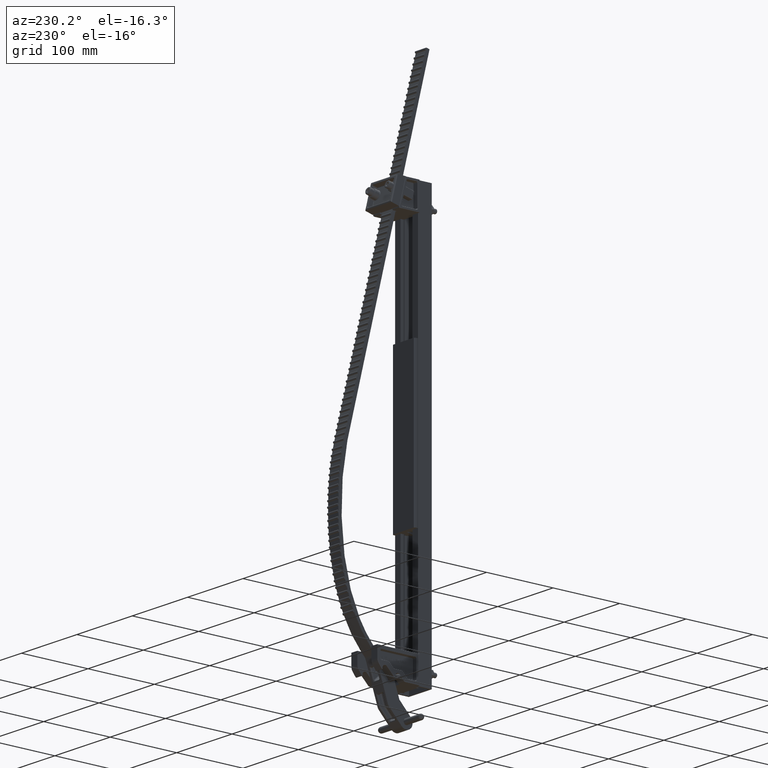
[diagram: clean part render]
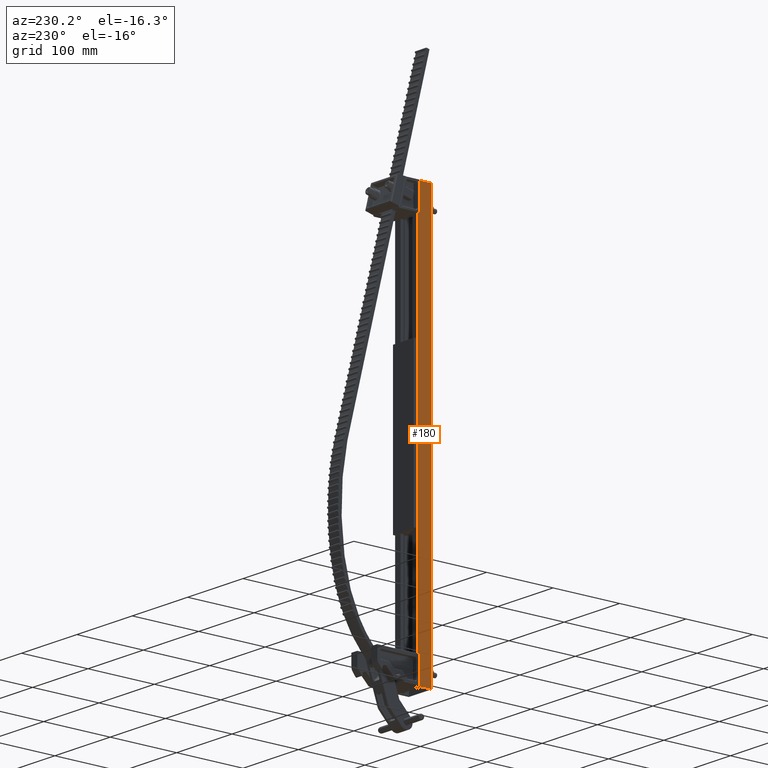
[diagram: same view with one face highlighted and labeled with its STEP entity id]
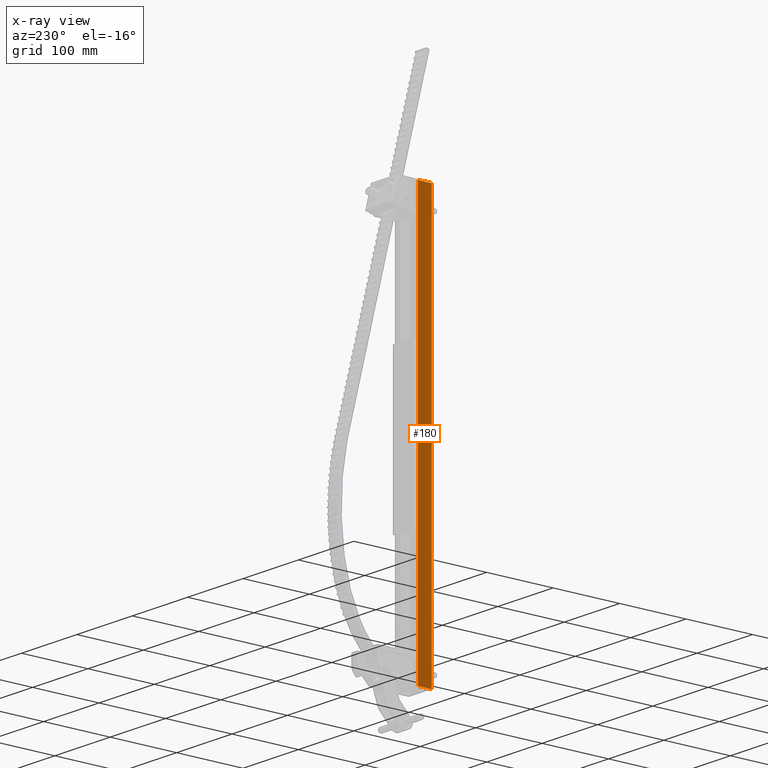
[diagram: x-ray of the same camera — body ghosted, the highlighted face saturated]
A machine part, auxiliary view. The second image highlights one B-rep face of the part: STEP entity #180.
The next image is the same camera in x-ray: the body ghosted, the highlighted face saturated — about 0% of this face is hidden behind the body in this view.
In plain terms, the highlighted planar face has unit normal (-1, 0, 0).
Its self-contained STEP definition (entity closure, byte-faithful):
#180 = ADVANCED_FACE ( 'NONE', ( #11580 ), #19913, .T. ) ;
#8775 = AXIS2_PLACEMENT_3D ( 'NONE', #19902, #19927, #19929 ) ;
#9576 = ORIENTED_EDGE ( 'NONE', *, *, #39175, .F. ) ;
#9579 = ORIENTED_EDGE ( 'NONE', *, *, #39165, .F. ) ;
#9581 = ORIENTED_EDGE ( 'NONE', *, *, #39171, .T. ) ;
#9583 = ORIENTED_EDGE ( 'NONE', *, *, #39183, .T. ) ;
#11580 = FACE_OUTER_BOUND ( 'NONE', #43746, .T. ) ;
#19475 = CARTESIAN_POINT ( 'NONE',  ( -0.8125000000000000000, 0.0000000000000000000, -12.00000000000000200 ) ) ;
#19476 = CARTESIAN_POINT ( 'NONE',  ( -0.8125000000000000000, 0.0000000000000000000, 12.00000000000000200 ) ) ;
#19483 = CARTESIAN_POINT ( 'NONE',  ( -0.8125000000000000000, 0.8125000000000000000, 12.00000000000000200 ) ) ;
#19484 = CARTESIAN_POINT ( 'NONE',  ( -0.8125000000000000000, 0.8125000000000000000, -12.00000000000000200 ) ) ;
#19902 = CARTESIAN_POINT ( 'NONE',  ( -0.8125000000000000000, 0.0000000000000000000, 12.00000000000000200 ) ) ;
#19913 = PLANE ( 'NONE',  #8775 ) ;
#19927 = DIRECTION ( 'NONE',  ( -1.000000000000000000, 0.0000000000000000000, 0.0000000000000000000 ) ) ;
#19929 = DIRECTION ( 'NONE',  ( 0.0000000000000000000, 0.0000000000000000000, 1.000000000000000000 ) ) ;
#22150 = CARTESIAN_POINT ( 'NONE',  ( -0.8125000000000000000, 0.0000000000000000000, 12.00000000000000200 ) ) ;
#22151 = DIRECTION ( 'NONE',  ( -0.0000000000000000000, -0.0000000000000000000, -1.000000000000000000 ) ) ;
#22160 = CARTESIAN_POINT ( 'NONE',  ( -0.8125000000000000000, 0.0000000000000000000, 12.00000000000000200 ) ) ;
#22163 = DIRECTION ( 'NONE',  ( 0.0000000000000000000, 1.000000000000000000, 0.0000000000000000000 ) ) ;
#22171 = CARTESIAN_POINT ( 'NONE',  ( -0.8125000000000000000, 0.0000000000000000000, -12.00000000000000200 ) ) ;
#22172 = DIRECTION ( 'NONE',  ( 0.0000000000000000000, 1.000000000000000000, 0.0000000000000000000 ) ) ;
#22188 = CARTESIAN_POINT ( 'NONE',  ( -0.8125000000000000000, 0.8125000000000000000, 12.00000000000000200 ) ) ;
#22189 = DIRECTION ( 'NONE',  ( -0.0000000000000000000, -0.0000000000000000000, -1.000000000000000000 ) ) ;
#22689 = LINE ( 'NONE', #22150, #22690 ) ;
#22690 = VECTOR ( 'NONE', #22151, 39.37007874015748100 ) ;
#22697 = LINE ( 'NONE', #22160, #22704 ) ;
#22704 = VECTOR ( 'NONE', #22163, 39.37007874015748100 ) ;
#22712 = LINE ( 'NONE', #22171, #22713 ) ;
#22713 = VECTOR ( 'NONE', #22172, 39.37007874015748100 ) ;
#22726 = LINE ( 'NONE', #22188, #22727 ) ;
#22727 = VECTOR ( 'NONE', #22189, 39.37007874015748100 ) ;
#38025 = VERTEX_POINT ( 'NONE', #19475 ) ;
#38026 = VERTEX_POINT ( 'NONE', #19476 ) ;
#38033 = VERTEX_POINT ( 'NONE', #19483 ) ;
#38034 = VERTEX_POINT ( 'NONE', #19484 ) ;
#39165 = EDGE_CURVE ( 'NONE', #38026, #38025, #22689, .T. ) ;
#39171 = EDGE_CURVE ( 'NONE', #38026, #38033, #22697, .T. ) ;
#39175 = EDGE_CURVE ( 'NONE', #38025, #38034, #22712, .T. ) ;
#39183 = EDGE_CURVE ( 'NONE', #38033, #38034, #22726, .T. ) ;
#43746 = EDGE_LOOP ( 'NONE', ( #9576, #9579, #9581, #9583 ) ) ;